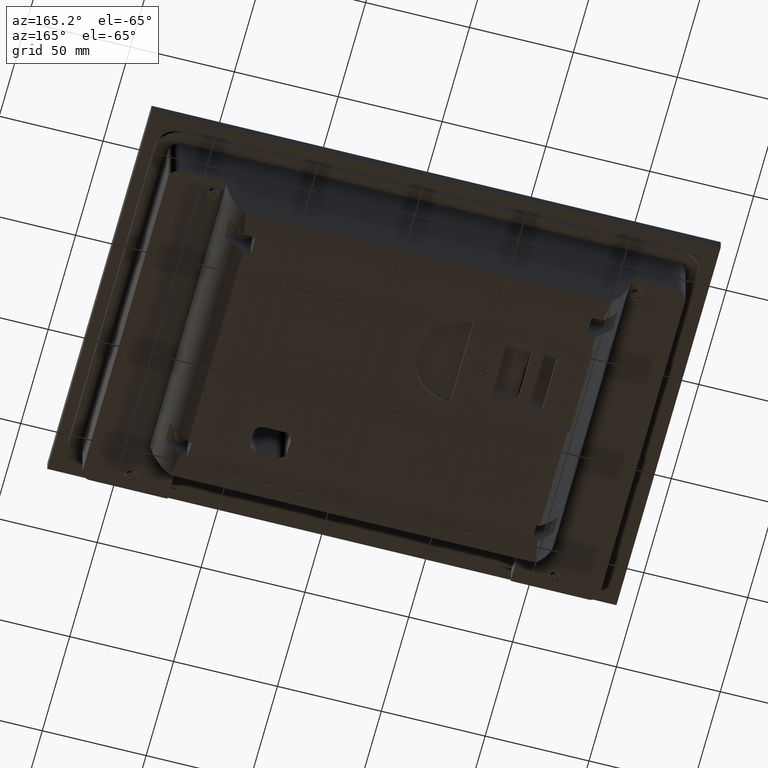
[diagram: clean part render]
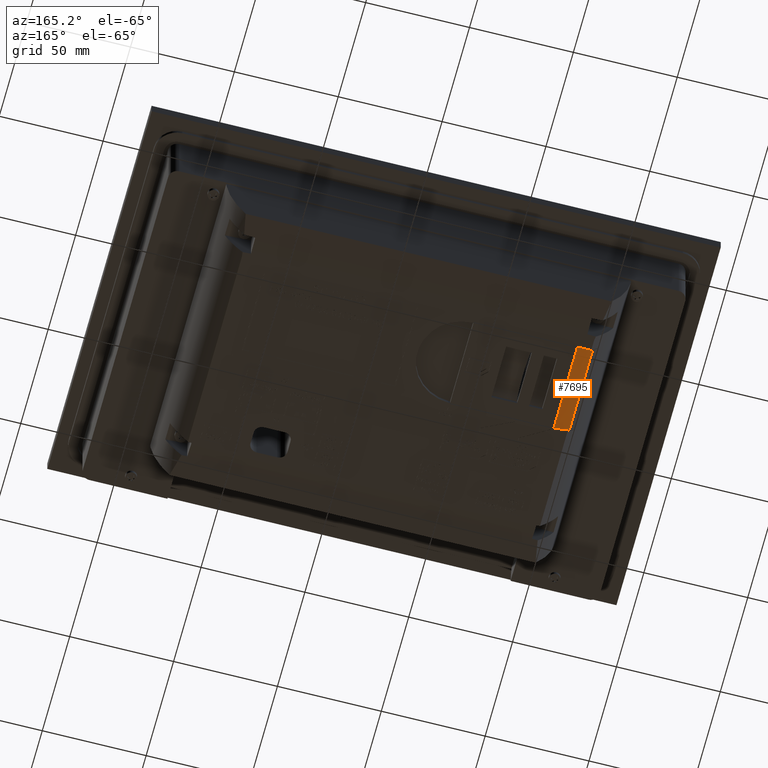
[diagram: same view with one face highlighted and labeled with its STEP entity id]
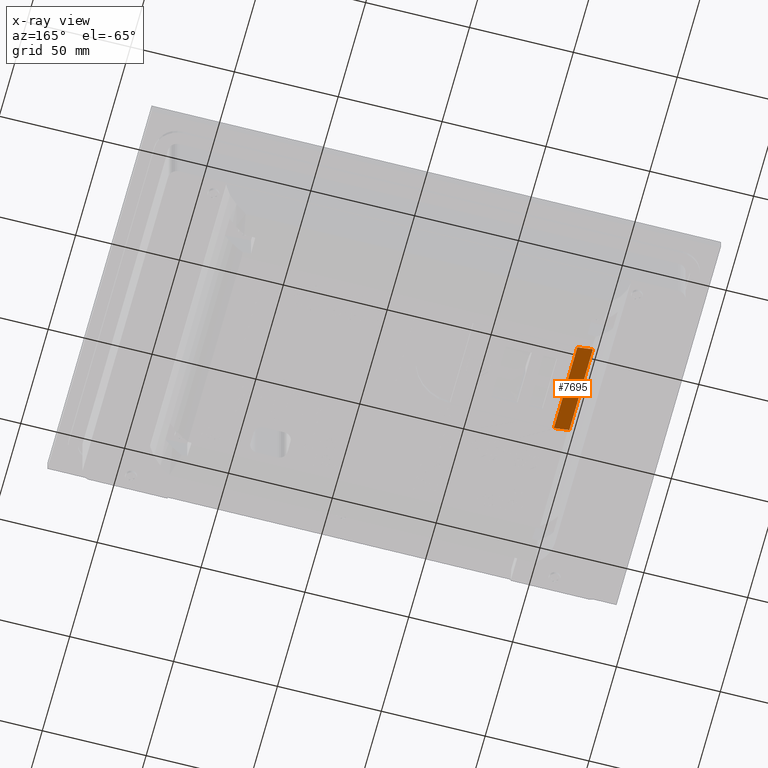
[diagram: x-ray of the same camera — body ghosted, the highlighted face saturated]
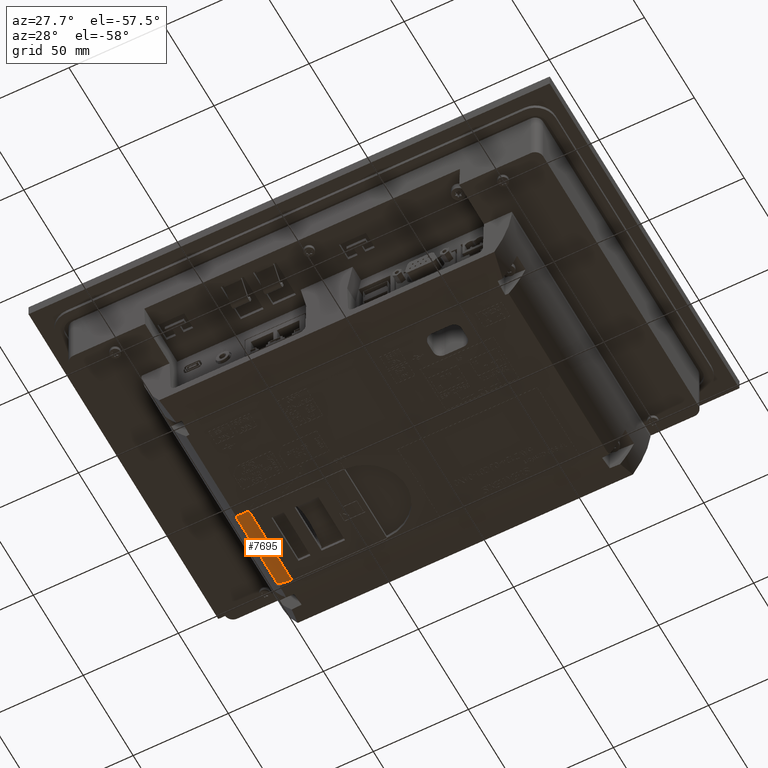
[diagram: same view with one face highlighted and labeled with its STEP entity id]
A machine part, auxiliary view. The second image highlights one B-rep face of the part: STEP entity #7695.
The next image is the same camera in x-ray: the body ghosted, the highlighted face saturated — about 0% of this face is hidden behind the body in this view.
A second angle (auxiliary view) of the same face is appended — the face is thin or edge-on in the first view.
In plain terms, the highlighted face is a SurfaceOfExtrusion surface.
Its self-contained STEP definition (entity closure, byte-faithful):
#4017=SURFACE_OF_LINEAR_EXTRUSION('',#4918,#51378);
#4916=B_SPLINE_CURVE_WITH_KNOTS('',3,(#93856,#93857,#93858,#93859,#93860,
#93861,#93862),.UNSPECIFIED.,.F.,.F.,(4,1,1,1,4),(0.,0.25,0.5,0.75,1.),.UNSPECIFIED.);
#4917=B_SPLINE_CURVE_WITH_KNOTS('',3,(#93866,#93867,#93868,#93869,#93870,
#93871,#93872),.UNSPECIFIED.,.F.,.F.,(4,1,1,1,4),(0.,0.25,0.5,0.75,1.),.UNSPECIFIED.);
#4918=B_SPLINE_CURVE_WITH_KNOTS('',3,(#93873,#93874,#93875,#93876,#93877,
#93878,#93879),.UNSPECIFIED.,.F.,.F.,(4,1,1,1,4),(0.,0.25,0.5,0.75,1.),.UNSPECIFIED.);
#7695=ADVANCED_FACE('',(#12560),#4017,.F.);
#12560=FACE_OUTER_BOUND('',#15652,.T.);
#15652=EDGE_LOOP('',(#28791,#28792,#28793,#28794));
#28791=ORIENTED_EDGE('',*,*,#39955,.T.);
#28792=ORIENTED_EDGE('',*,*,#39956,.F.);
#28793=ORIENTED_EDGE('',*,*,#39957,.F.);
#28794=ORIENTED_EDGE('',*,*,#39953,.T.);
#33356=VERTEX_POINT('',#93839);
#33357=VERTEX_POINT('',#93841);
#33358=VERTEX_POINT('',#93863);
#33359=VERTEX_POINT('',#93865);
#39953=EDGE_CURVE('',#33357,#33356,#45528,.T.);
#39955=EDGE_CURVE('',#33356,#33358,#4916,.T.);
#39956=EDGE_CURVE('',#33359,#33358,#45529,.T.);
#39957=EDGE_CURVE('',#33357,#33359,#4917,.T.);
#45528=LINE('',#93840,#51375);
#45529=LINE('',#93864,#51377);
#51375=VECTOR('',#66027,1.);
#51377=VECTOR('',#66029,1.);
#51378=VECTOR('',#66030,1.);
#66027=DIRECTION('',(0.,-1.,0.));
#66029=DIRECTION('',(0.,-1.,0.));
#66030=DIRECTION('',(0.,-1.,0.));
#93839=CARTESIAN_POINT('',(-49.96836458863,0.,-1.78879772103899));
#93840=CARTESIAN_POINT('',(-49.96836458863,42.902,-1.78879772103899));
#93841=CARTESIAN_POINT('',(-49.96836458863,42.902,-1.78879772103899));
#93856=CARTESIAN_POINT('',(-49.96836458863,0.,-1.78879772103899));
#93857=CARTESIAN_POINT('',(-50.59919906942,0.,-1.66562522362988));
#93858=CARTESIAN_POINT('',(-51.85691567656,0.,-1.39900415919339));
#93859=CARTESIAN_POINT('',(-53.72966336507,0.,-0.938659890681981));
#93860=CARTESIAN_POINT('',(-55.58665330099,0.,-0.418378311061979));
#93861=CARTESIAN_POINT('',(-56.81286335771,0.,-0.0319231185369889));
#93862=CARTESIAN_POINT('',(-57.42270067305,0.,0.17110274345801));
#93863=CARTESIAN_POINT('',(-57.42270067305,0.,0.17110274345801));
#93864=CARTESIAN_POINT('',(-57.42270067305,42.902,0.17110274345801));
#93865=CARTESIAN_POINT('',(-57.42270067305,42.902,0.17110274345801));
#93866=CARTESIAN_POINT('',(-49.96836458863,42.902,-1.78879772103899));
#93867=CARTESIAN_POINT('',(-50.59919906942,42.902,-1.66562522362988));
#93868=CARTESIAN_POINT('',(-51.85691567656,42.902,-1.39900415919339));
#93869=CARTESIAN_POINT('',(-53.72966336507,42.902,-0.938659890681981));
#93870=CARTESIAN_POINT('',(-55.58665330099,42.902,-0.418378311061979));
#93871=CARTESIAN_POINT('',(-56.81286335771,42.902,-0.0319231185369889));
#93872=CARTESIAN_POINT('',(-57.42270067305,42.902,0.17110274345801));
#93873=CARTESIAN_POINT('',(-49.96836458863,42.902,-1.78879772103899));
#93874=CARTESIAN_POINT('',(-50.59919906942,42.902,-1.66562522362988));
#93875=CARTESIAN_POINT('',(-51.85691567656,42.902,-1.39900415919339));
#93876=CARTESIAN_POINT('',(-53.72966336507,42.902,-0.938659890681981));
#93877=CARTESIAN_POINT('',(-55.58665330099,42.902,-0.418378311061979));
#93878=CARTESIAN_POINT('',(-56.81286335771,42.902,-0.0319231185369889));
#93879=CARTESIAN_POINT('',(-57.42270067305,42.902,0.17110274345801));